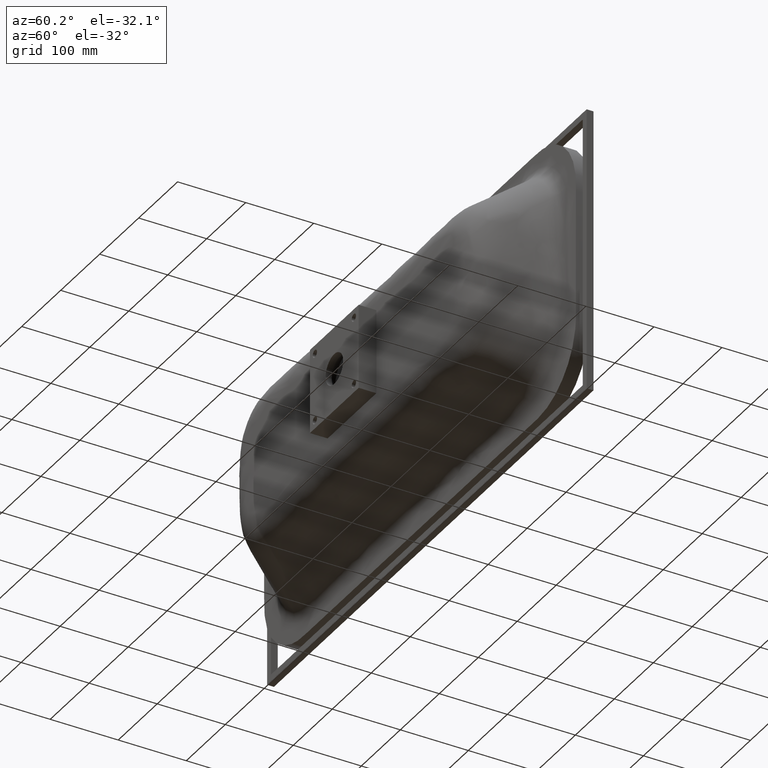
[diagram: clean part render]
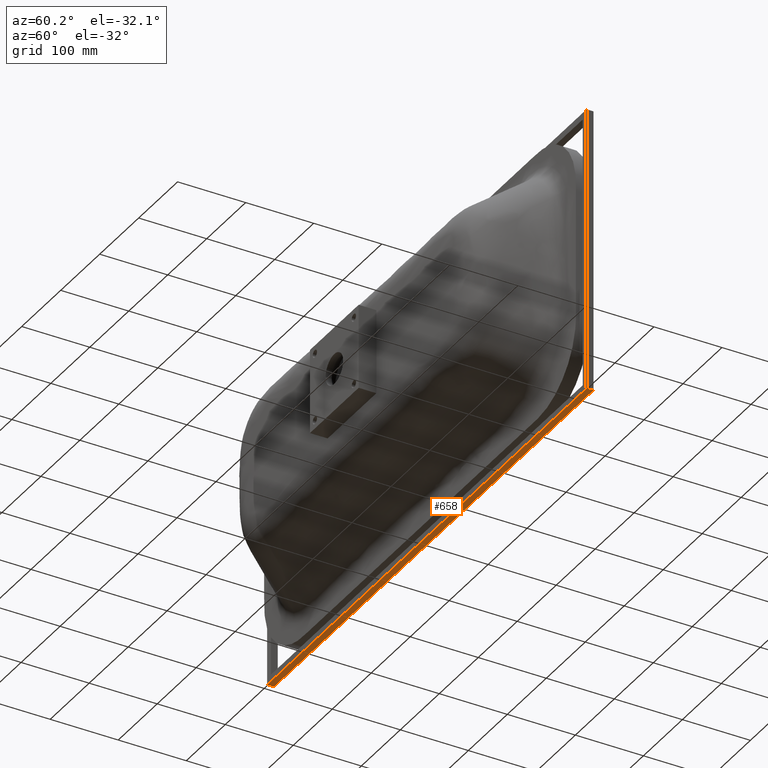
[diagram: same view with one face highlighted and labeled with its STEP entity id]
A machine part, auxiliary view. The second image highlights one B-rep face of the part: STEP entity #658.
In plain terms, the highlighted planar face has unit normal (-0, -0, -1).
Its self-contained STEP definition (entity closure, byte-faithful):
#53 = DIRECTION ( 'NONE',  ( -1.895115065277039700E-030, 1.000000000000000000, -5.551115123125781700E-016 ) ) ;
#96 = CARTESIAN_POINT ( 'NONE',  ( 409.9999999999996600, 110.0000000000021700, -210.0000000000014800 ) ) ;
#115 = CARTESIAN_POINT ( 'NONE',  ( 409.9999999999996600, 120.0000000000021700, -210.0000000000014800 ) ) ;
#314 = CARTESIAN_POINT ( 'NONE',  ( -410.0000000000010800, 119.9999999999999000, -209.9999999999986100 ) ) ;
#374 = DIRECTION ( 'NONE',  ( -3.549328852505910400E-015, -5.551115123125781700E-016, -1.000000000000000000 ) ) ;
#658 = ADVANCED_FACE ( 'NONE', ( #3783 ), #4056, .T. ) ;
#715 = ORIENTED_EDGE ( 'NONE', *, *, #2845, .T. ) ;
#1610 = LINE ( 'NONE', #3806, #2924 ) ;
#1772 = ORIENTED_EDGE ( 'NONE', *, *, #2745, .F. ) ;
#2007 = CARTESIAN_POINT ( 'NONE',  ( 409.9999999999996600, 110.0000000000021700, -210.0000000000014800 ) ) ;
#2196 = VERTEX_POINT ( 'NONE', #5873 ) ;
#2305 = VERTEX_POINT ( 'NONE', #314 ) ;
#2552 = LINE ( 'NONE', #8380, #5798 ) ;
#2666 = ORIENTED_EDGE ( 'NONE', *, *, #3202, .T. ) ;
#2745 = EDGE_CURVE ( 'NONE', #5559, #2305, #7437, .T. ) ;
#2845 = EDGE_CURVE ( 'NONE', #2196, #9929, #1610, .T. ) ;
#2924 = VECTOR ( 'NONE', #5936, 1000.000000000000000 ) ;
#3202 = EDGE_CURVE ( 'NONE', #9929, #2305, #2552, .T. ) ;
#3783 = FACE_OUTER_BOUND ( 'NONE', #9325, .T. ) ;
#3806 = CARTESIAN_POINT ( 'NONE',  ( 409.9999999999996600, 110.0000000000021700, -210.0000000000014800 ) ) ;
#4056 = PLANE ( 'NONE',  #5463 ) ;
#4552 = DIRECTION ( 'NONE',  ( -1.000000000000000000, -2.775557561562888600E-015, 3.549328852505912000E-015 ) ) ;
#4819 = LINE ( 'NONE', #2007, #5136 ) ;
#5136 = VECTOR ( 'NONE', #7441, 1000.000000000000000 ) ;
#5463 = AXIS2_PLACEMENT_3D ( 'NONE', #96, #374, #53 ) ;
#5559 = VERTEX_POINT ( 'NONE', #115 ) ;
#5798 = VECTOR ( 'NONE', #8105, 1000.000000000000000 ) ;
#5873 = CARTESIAN_POINT ( 'NONE',  ( 409.9999999999996600, 110.0000000000021700, -210.0000000000014800 ) ) ;
#5936 = DIRECTION ( 'NONE',  ( -1.000000000000000000, -2.775557561562888600E-015, 3.549328852505912000E-015 ) ) ;
#6086 = CARTESIAN_POINT ( 'NONE',  ( 409.9999999999996600, 120.0000000000021700, -210.0000000000014800 ) ) ;
#7398 = VECTOR ( 'NONE', #4552, 1000.000000000000000 ) ;
#7437 = LINE ( 'NONE', #6086, #7398 ) ;
#7441 = DIRECTION ( 'NONE',  ( -2.775557561562891400E-015, 1.000000000000000000, -5.551115123125683100E-016 ) ) ;
#7918 = ORIENTED_EDGE ( 'NONE', *, *, #8698, .F. ) ;
#7978 = CARTESIAN_POINT ( 'NONE',  ( -410.0000000000010800, 109.9999999999999000, -209.9999999999986100 ) ) ;
#8105 = DIRECTION ( 'NONE',  ( -2.775557561562891400E-015, 1.000000000000000000, -5.551115123125683100E-016 ) ) ;
#8380 = CARTESIAN_POINT ( 'NONE',  ( -410.0000000000010800, 109.9999999999999000, -209.9999999999986100 ) ) ;
#8698 = EDGE_CURVE ( 'NONE', #2196, #5559, #4819, .T. ) ;
#9325 = EDGE_LOOP ( 'NONE', ( #1772, #7918, #715, #2666 ) ) ;
#9929 = VERTEX_POINT ( 'NONE', #7978 ) ;